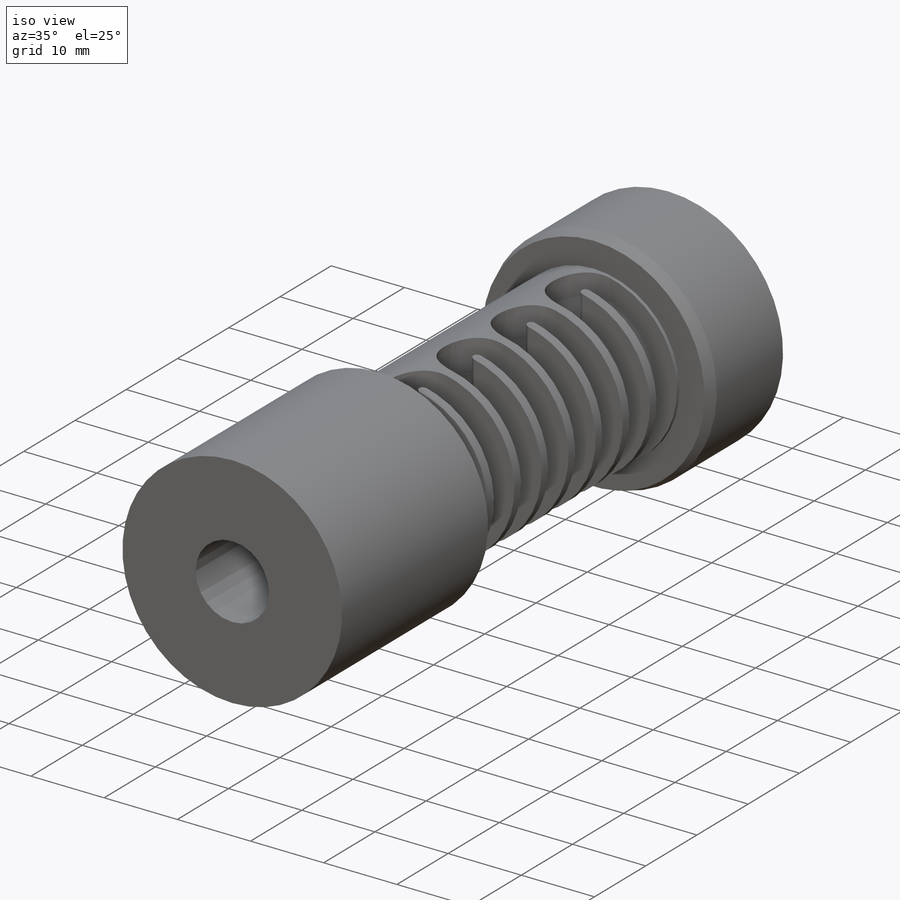
[diagram: iso view]
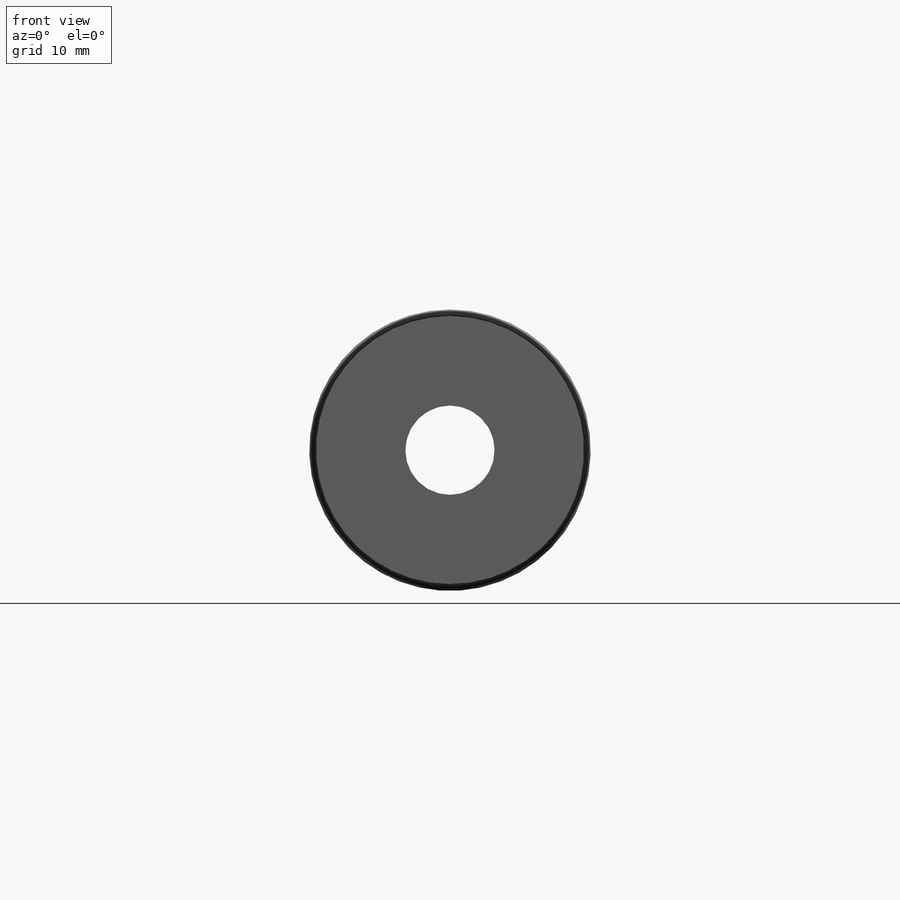
[diagram: front view]
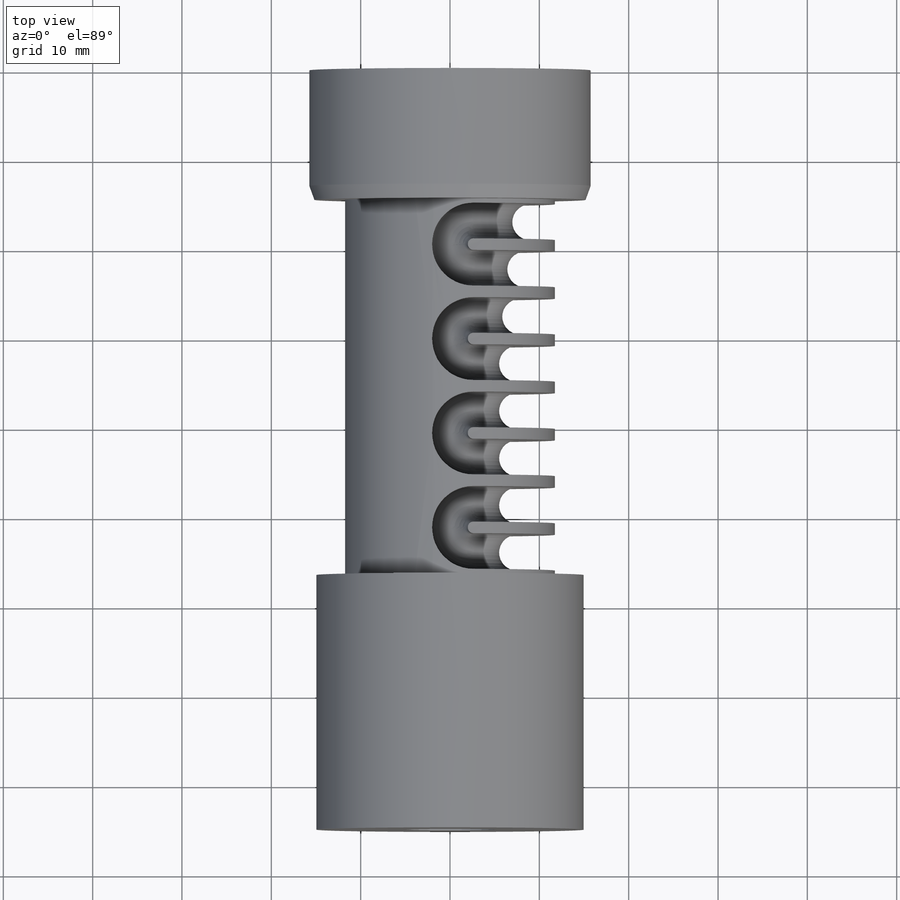
[diagram: top view]
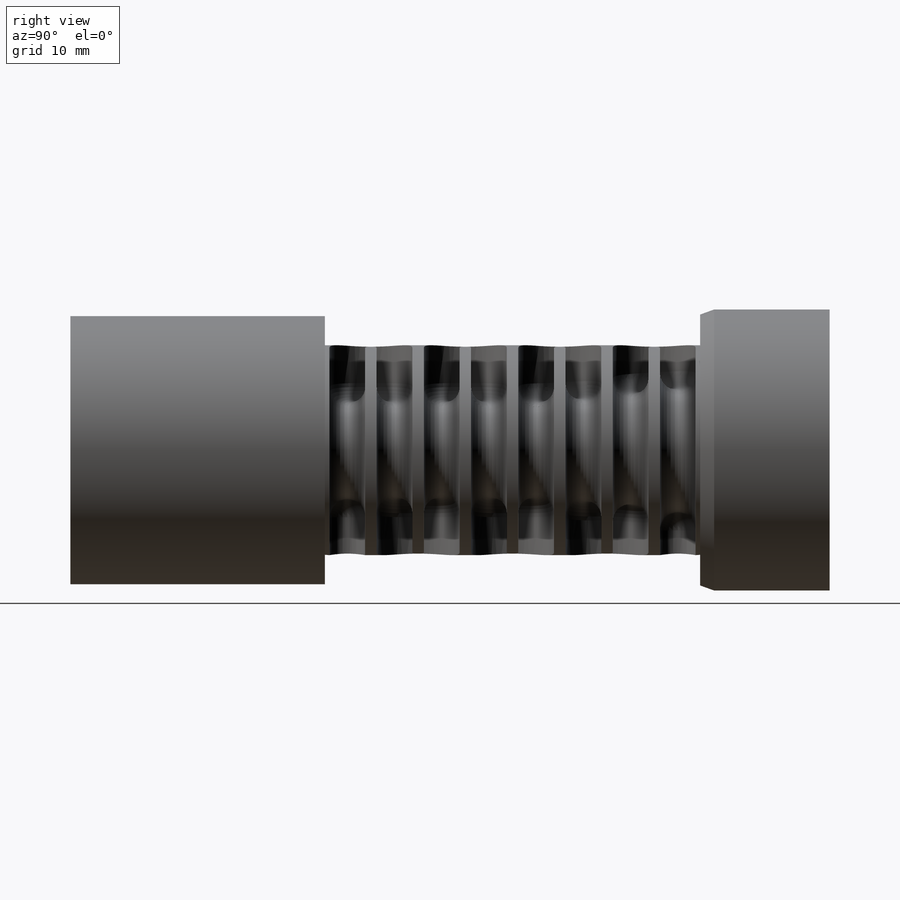
[diagram: right view]
SOLIDWORKS PART (.sldprt)
format: sldprt  version: not decoded by parser v0  size: 1,298,944 bytes
history: native  units: mm
features: sketch x14, plane x11, fillet x3, revolve x2, cut_revolve x2, material x1 (+10 scaffold rows collapsed)
feature tree (43):
  scaffold x10  (default folders/planes/origin — collapsed)
  material  "7075-T6 (SN)"
  plane  "Vorne"
  plane  "Oben"
  plane  "Rechts"
  sketch  "Skizze1"  dims[c1.D1=5.0075mm c1.D2=12.0mm c1.D3=22.0mm c1.D4=15.0mm c1.D5=3.0mm c1.D6=2.0mm c1.D7=54.0mm c1.D8=84.0mm c1.D9=2.5mm c1.D10=~2.147435mm c2.D10=10.0deg c2.D11=7.0mm c2.D12=7.0mm c2.D13=22.0mm c2.D14=5.0mm c2.D15=54.0mm c2.D16=7.0mm c2.D17=~2.777146mm c3.D17=6.0deg c3.D18=~2.313852mm c3.D19=15.75mm c3.D20=5.0mm c3.D21=~9.516596mm c4.D21=~183.011695deg c5.D21=0.5mm c6.D21=~183.011695deg c7.D21=~9.516596mm c8.D21=~176.988305deg c9.D21=2.0mm c10.D21=~183.011695deg c11.D21=~1.479538mm c12.D21=20.0deg c12.D22=31.5mm c12.D23=36.3mm c12.D24=1.4mm c12.D25=2.4mm c12.D26=2.4mm c12.D27=1.3mm c12.D28=17.5mm c12.D29=1.5mm c12.D30=1.1mm c12.D3=85.0mm c12.D5=70.0mm c12.D6=~1.409268mm c13.D6=6.0deg c13.D8=10.0mm c13.D9=~20.560608mm c14.D9=90.0deg c15.D9=30.0mm c15.D10=~2.902925mm c16.D10=20.0deg c16.D11=70.0mm c16.D12=85.0mm c16.D13=15.75mm c16.D14=54.0mm c16.D1=~12.939392mm c16.D2=15.0mm c16.D3=31.0mm c16.D4=85.0mm c16.D5=5.0mm c16.D6=~8.258231mm c16.D7=15.0mm c16.D8=15.75mm c17.D1=54.0mm c17.D2=70.0mm c17.D3=70.0mm c18.D3=20.0deg c18.D6=54.0mm c19.D6=6.0deg c19.D9=23.5mm c19.D10=28.5mm c19.D11=42.0mm c19.D2=70.5mm c19.D7=~30.364143mm c19.D12=30.0mm]
  revolve  "Rotation1"  Angle=360deg
  sketch  "Skizze2"  dims[D1=0.5mm D2=4.0mm]
  plane  "Ebene1"
  plane  "Ebene2"
  plane  "Ebene3"
  plane  "Ebene4"
  plane  "Ebene5"
  plane  "Ebene6"
  plane  "Ebene7"
  plane  "Ebene8"
  sketch  "Skizze3"  dims[D1=0.0mm]
  sketch  "Skizze4"  dims[D1=0.0mm]
  sketch  "Skizze5"  dims[D1=0.0mm]
  sketch  "Skizze6"  dims[D1=0.0mm]
  sketch  "Skizze7"  dims[D1=0.0mm]
  sketch  "Skizze8"  dims[D1=0.0mm]
  sketch  "Skizze9"  dims[D1=0.0mm]
  sketch  "Skizze10"  dims[c1.D1=0.0mm c2.D1=0.5mm]
  sketch  "Skizze11"
  sketch  "Skizze13"
  revolve  "Oberfläche-Zusammenfügen8"  [1 undecoded]
  fillet  "Verrundung1"  Radius=2.6mm
  sketch  "Skizze14"  dims[D1=0.0mm]
  cut_revolve  "Schnitt-Rotation1"  Angle=360deg
  sketch  "Skizze15"  dims[D1=0.0mm]
  cut_revolve  "Schnitt-Rotation2"  Angle=360deg
  fillet  "Verrundung6"  Radius=2mm
  fillet  "Verrundung8"  Radius=2mm
decode coverage: 18 of 21 modeling features carry decoded parameters
note: ~ marks probable driven/reference dimensions
note: 1 parameter value undecoded
note: suppression state not decoded; provenance and decode notes live in map.json
